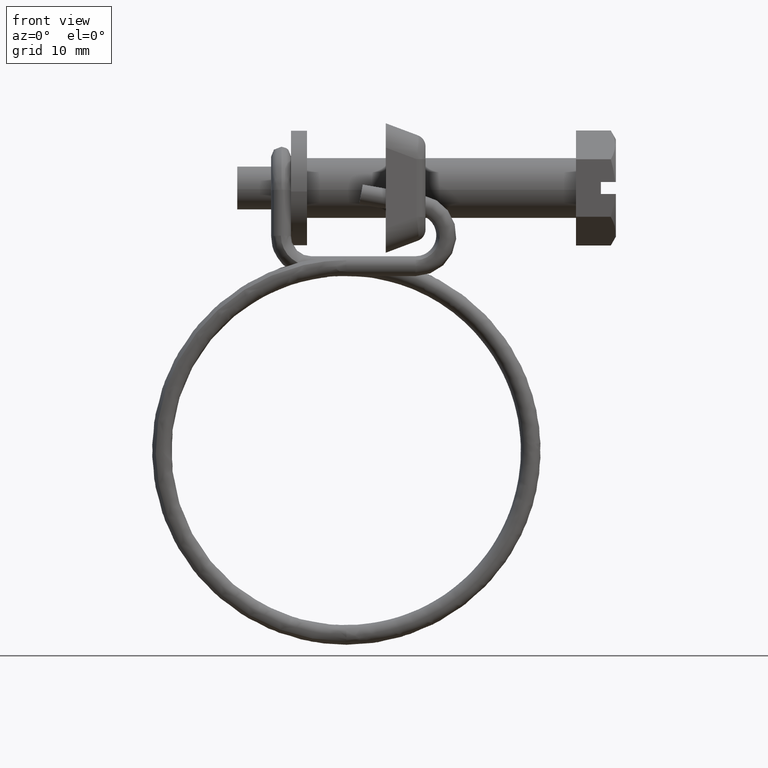
[diagram: clean part render]
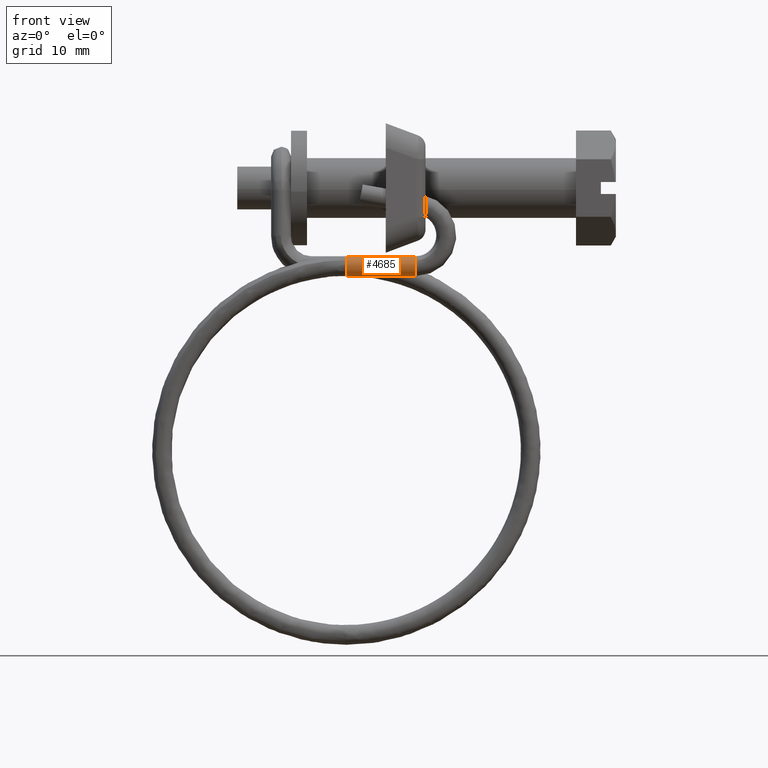
[diagram: same view with one face highlighted and labeled with its STEP entity id]
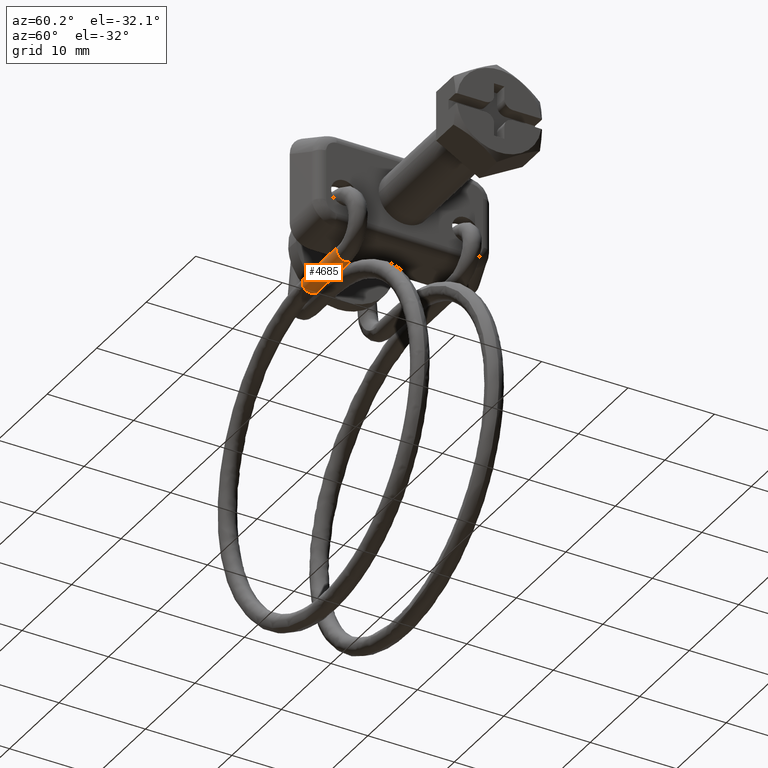
[diagram: same view with one face highlighted and labeled with its STEP entity id]
A machine part, front view. The second image highlights one B-rep face of the part: STEP entity #4685.
A second angle (auxiliary view) of the same face is appended — the face is thin or edge-on in the first view.
In plain terms, the highlighted face is a freeform B-spline surface patch.
Its self-contained STEP definition (entity closure, byte-faithful):
#4555=CARTESIAN_POINT('',(-23.223495853715775,-6.061864660282851,-6.881276122855943));
#4556=CARTESIAN_POINT('',(-23.223495853715775,-6.207387581596286,-6.844000665696479));
#4557=CARTESIAN_POINT('',(-23.223495853715779,-6.357439567843020,-6.851126797708463));
#4558=CARTESIAN_POINT('',(-23.223495853715779,-7.356313770134380,-6.898564419874883));
#4559=CARTESIAN_POINT('',(-23.223495853715779,-7.308876147967958,-7.897438622166241));
#4560=CARTESIAN_POINT('',(-23.223495853715779,-7.261438525801538,-8.896312824457597));
#4561=CARTESIAN_POINT('',(-23.223495853715779,-6.262564323510180,-8.848875202291177));
#4562=CARTESIAN_POINT('',(-23.223495853715779,-5.263690121218823,-8.801437580124757));
#4563=CARTESIAN_POINT('',(-23.223495853715779,-5.311127743385242,-7.802563377833400));
#4564=CARTESIAN_POINT('',(-15.932332601255759,-6.061864660282851,-6.881276122855943));
#4565=CARTESIAN_POINT('',(-15.932332601255760,-6.207387581596286,-6.844000665696479));
#4566=CARTESIAN_POINT('',(-15.932332601255760,-6.357439567843020,-6.851126797708463));
#4567=CARTESIAN_POINT('',(-15.932332601255768,-7.356313770134380,-6.898564419874883));
#4568=CARTESIAN_POINT('',(-15.932332601255760,-7.308876147967958,-7.897438622166241));
#4569=CARTESIAN_POINT('',(-15.932332601255768,-7.261438525801538,-8.896312824457597));
#4570=CARTESIAN_POINT('',(-15.932332601255760,-6.262564323510180,-8.848875202291177));
#4571=CARTESIAN_POINT('',(-15.932332601255768,-5.263690121218823,-8.801437580124757));
#4572=CARTESIAN_POINT('',(-15.932332601255760,-5.311127743385242,-7.802563377833400));
#4580=(BOUNDED_SURFACE()B_SPLINE_SURFACE(2,1,((#4555,#4564),(#4556,#4565),(#4557,#4566),(#4558,#4567),(#4559,#4568),(#4560,#4569),(#4561,#4570),(#4562,#4571),(#4563,#4572)),.UNSPECIFIED.,.F.,.F.,.U.)B_SPLINE_SURFACE_WITH_KNOTS((3,2,2,2,3),(2,2),(1.256637061435917,1.570796326794897,3.141592653589793,4.712388980384690,6.283185307179586),(0.0,7.291163252460018),.UNSPECIFIED.)GEOMETRIC_REPRESENTATION_ITEM()RATIONAL_B_SPLINE_SURFACE(((0.906274169979695,0.906274169979695),(0.941421356237309,0.941421356237309),(1.0,1.0),(0.707106781186548,0.707106781186548),(1.0,1.0),(0.707106781186548,0.707106781186548),(1.0,1.0),(0.707106781186548,0.707106781186548),(1.0,1.0)))REPRESENTATION_ITEM('')SURFACE());
#4581=CARTESIAN_POINT('',(-16.110165851315781,-6.061984946200901,-6.881744047677394));
#4582=VERTEX_POINT('',#4581);
#4583=CARTESIAN_POINT('',(-16.110165851315760,-6.418330858357346,-6.855885894833367));
#4584=VERTEX_POINT('',#4583);
#4585=CARTESIAN_POINT('',(-16.110165851315781,-6.061984946200901,-6.881744047677394));
#4586=CARTESIAN_POINT('',(-16.110165851315770,-6.178002519084687,-6.852084165349648));
#4587=CARTESIAN_POINT('',(-16.110165851315770,-6.299221444937082,-6.842756537710409));
#4588=CARTESIAN_POINT('',(-16.110165851315760,-6.418330858357346,-6.855885894833367));
#4589=B_SPLINE_CURVE_WITH_KNOTS('',3,(#4585,#4586,#4587,#4588),.UNSPECIFIED.,.F.,.U.,(4,4),(0.942811837356443,1.0),.UNSPECIFIED.);
#4590=EDGE_CURVE('',#4582,#4584,#4589,.T.);
#4591=ORIENTED_EDGE('',*,*,#4590,.F.);
#4592=CARTESIAN_POINT('',(-23.049999999998700,-6.061984946165349,-6.881744047536308));
#4593=VERTEX_POINT('',#4592);
#4594=CARTESIAN_POINT('',(-23.049999999998700,-6.061984946165349,-6.881744047536308));
#4595=CARTESIAN_POINT('',(-16.110165851315781,-6.061984946200901,-6.881744047677394));
#4596=QUASI_UNIFORM_CURVE('',1,(#4594,#4595),.UNSPECIFIED.,.F.,.U.);
#4597=EDGE_CURVE('',#4593,#4582,#4596,.T.);
#4598=ORIENTED_EDGE('',*,*,#4597,.F.);
#4599=CARTESIAN_POINT('',(-23.049999999998700,-6.418330898344230,-6.855885896999195));
#4600=VERTEX_POINT('',#4599);
#4601=CARTESIAN_POINT('',(-23.049999999998700,-6.061984946165349,-6.881744047536308));
#4602=CARTESIAN_POINT('',(-23.049999999998700,-6.178002532036932,-6.852084161647801));
#4603=CARTESIAN_POINT('',(-23.049999999998700,-6.299221472066138,-6.842756534705753));
#4604=CARTESIAN_POINT('',(-23.049999999998700,-6.418330898344230,-6.855885896999195));
#4605=B_SPLINE_CURVE_WITH_KNOTS('',3,(#4601,#4602,#4603,#4604),.UNSPECIFIED.,.F.,.U.,(4,4),(0.942811830977924,1.0),.UNSPECIFIED.);
#4606=EDGE_CURVE('',#4593,#4600,#4605,.T.);
#4607=ORIENTED_EDGE('',*,*,#4606,.T.);
#4608=CARTESIAN_POINT('',(-23.049999999998700,-7.108815314261218,-7.248458882189789));
#4609=VERTEX_POINT('',#4608);
#4610=CARTESIAN_POINT('',(-23.049999999998700,-6.418330898344230,-6.855885896999195));
#4611=CARTESIAN_POINT('',(-23.049999999998700,-6.678589623711680,-6.884246350488500));
#4612=CARTESIAN_POINT('',(-23.049999999998700,-6.925570772727950,-7.019571027868130));
#4613=CARTESIAN_POINT('',(-23.049999999998700,-7.096106701423592,-7.231819007583885));
#4614=CARTESIAN_POINT('',(-23.049999999998700,-7.102529750860319,-7.240088403559629));
#4615=CARTESIAN_POINT('',(-23.049999999998700,-7.108815314261218,-7.248458882189789));
#4616=B_SPLINE_CURVE_WITH_KNOTS('',3,(#4610,#4611,#4612,#4613,#4614,#4615),.UNSPECIFIED.,.F.,.U.,(4,2,4),(0.0,0.125000000000000,0.130000011039324),.UNSPECIFIED.);
#4617=EDGE_CURVE('',#4600,#4609,#4616,.T.);
#4618=ORIENTED_EDGE('',*,*,#4617,.T.);
#4619=CARTESIAN_POINT('',(-23.049999999998700,-6.201672993008976,-8.844116103000440));
#4620=VERTEX_POINT('',#4619);
#4621=CARTESIAN_POINT('',(-23.049999999998700,-7.108815314261218,-7.248458882189789));
#4622=CARTESIAN_POINT('',(-23.049999999998700,-7.259669009353940,-7.449350600324918));
#4623=CARTESIAN_POINT('',(-23.049999999998700,-7.331343081522316,-7.708481599299342));
#4624=CARTESIAN_POINT('',(-23.049999999998700,-7.275756595187921,-8.218588678034900));
#4625=CARTESIAN_POINT('',(-23.049999999998700,-7.140431917808300,-8.465569827051159));
#4626=CARTESIAN_POINT('',(-23.049999999998700,-6.732262760708080,-8.793523508232111));
#4627=CARTESIAN_POINT('',(-23.049999999998700,-6.461931718376430,-8.872476556489749));
#4628=CARTESIAN_POINT('',(-23.049999999998700,-6.201672993008976,-8.844116103000440));
#4629=B_SPLINE_CURVE_WITH_KNOTS('',3,(#4621,#4622,#4623,#4624,#4625,#4626,#4627,#4628),.UNSPECIFIED.,.F.,.U.,(4,2,2,4),(0.130000011039324,0.250000000000000,0.375000000000000,0.500000000000000),.UNSPECIFIED.);
#4630=EDGE_CURVE('',#4609,#4620,#4629,.T.);
#4631=ORIENTED_EDGE('',*,*,#4630,.T.);
#4632=CARTESIAN_POINT('',(-23.049999999998700,-5.311166654133594,-7.802564557885741));
#4633=VERTEX_POINT('',#4632);
#4634=CARTESIAN_POINT('',(-23.049999999998700,-6.201672993008976,-8.844116103000440));
#4635=CARTESIAN_POINT('',(-23.049999999998700,-5.941408856807967,-8.815755405294498));
#4636=CARTESIAN_POINT('',(-23.049999999998700,-5.694420234736023,-8.680430390620360));
#4637=CARTESIAN_POINT('',(-23.049999999998700,-5.379210289133487,-8.288139129554434));
#4638=CARTESIAN_POINT('',(-23.049999999998700,-5.300292869483000,-8.043593749295711));
#4639=CARTESIAN_POINT('',(-23.049999999998700,-5.311166654133594,-7.802564557885741));
#4640=B_SPLINE_CURVE_WITH_KNOTS('',3,(#4634,#4635,#4636,#4637,#4638,#4639),.UNSPECIFIED.,.F.,.U.,(4,2,4),(0.500000000000000,0.625000000000000,0.740274534479289),.UNSPECIFIED.);
#4641=EDGE_CURVE('',#4620,#4633,#4640,.T.);
#4642=ORIENTED_EDGE('',*,*,#4641,.T.);
#4643=CARTESIAN_POINT('',(-16.110165851554608,-5.311166654086835,-7.802564557878826));
#4644=VERTEX_POINT('',#4643);
#4645=CARTESIAN_POINT('',(-23.049999999998700,-5.311166654133594,-7.802564557885741));
#4646=CARTESIAN_POINT('',(-16.110165851554608,-5.311166654086835,-7.802564557878826));
#4647=QUASI_UNIFORM_CURVE('',1,(#4645,#4646),.UNSPECIFIED.,.F.,.U.);
#4648=EDGE_CURVE('',#4633,#4644,#4647,.T.);
#4649=ORIENTED_EDGE('',*,*,#4648,.T.);
#4650=CARTESIAN_POINT('',(-16.110165851315781,-6.201673032759847,-8.844116107332102));
#4651=VERTEX_POINT('',#4650);
#4652=CARTESIAN_POINT('',(-16.110165851315781,-6.201673032759847,-8.844116107332102));
#4653=CARTESIAN_POINT('',(-16.110165851349009,-5.941408895431570,-8.815755420033215));
#4654=CARTESIAN_POINT('',(-16.110165851394910,-5.694420267957749,-8.680430415235319));
#4655=CARTESIAN_POINT('',(-16.110165851482581,-5.379210298332059,-8.288139156376147));
#4656=CARTESIAN_POINT('',(-16.110165851523909,-5.300292868546233,-8.043593762650719));
#4657=CARTESIAN_POINT('',(-16.110165851554608,-5.311166654086835,-7.802564557878826));
#4658=B_SPLINE_CURVE_WITH_KNOTS('',3,(#4652,#4653,#4654,#4655,#4656,#4657),.UNSPECIFIED.,.F.,.U.,(4,2,4),(0.500000000000000,0.625000000000000,0.740274540847649),.UNSPECIFIED.);
#4659=EDGE_CURVE('',#4651,#4644,#4658,.T.);
#4660=ORIENTED_EDGE('',*,*,#4659,.F.);
#4661=CARTESIAN_POINT('',(-16.110165851315760,-7.108815286981647,-7.248458872689191));
#4662=VERTEX_POINT('',#4661);
#4663=CARTESIAN_POINT('',(-16.110165851315760,-7.108815286981647,-7.248458872689191));
#4664=CARTESIAN_POINT('',(-16.110165851315781,-7.259668996411343,-7.449350573479191));
#4665=CARTESIAN_POINT('',(-16.110165851315781,-7.331343075278910,-7.708481563824408));
#4666=CARTESIAN_POINT('',(-16.110165851315781,-7.275756609926328,-8.218588639418055));
#4667=CARTESIAN_POINT('',(-16.110165851315770,-7.140431942422541,-8.465569793845432));
#4668=CARTESIAN_POINT('',(-16.110165851315781,-6.732262798435946,-8.793523491347514));
#4669=CARTESIAN_POINT('',(-16.110165851315781,-6.461931759261324,-8.872476550414655));
#4670=CARTESIAN_POINT('',(-16.110165851315781,-6.201673032759847,-8.844116107332102));
#4671=B_SPLINE_CURVE_WITH_KNOTS('',3,(#4663,#4664,#4665,#4666,#4667,#4668,#4669,#4670),.UNSPECIFIED.,.F.,.U.,(4,2,2,4),(0.130000013615897,0.250000000000000,0.375000000000000,0.500000000000000),.UNSPECIFIED.);
#4672=EDGE_CURVE('',#4662,#4651,#4671,.T.);
#4673=ORIENTED_EDGE('',*,*,#4672,.F.);
#4674=CARTESIAN_POINT('',(-16.110165851315760,-6.418330858357346,-6.855885894833367));
#4675=CARTESIAN_POINT('',(-16.110165851315781,-6.678589585094833,-6.884246335750093));
#4676=CARTESIAN_POINT('',(-16.110165851315781,-6.925570739522213,-7.019571003253878));
#4677=CARTESIAN_POINT('',(-16.110165851315781,-7.096106680084830,-7.231818980357266));
#4678=CARTESIAN_POINT('',(-16.110165851315781,-7.102529733092000,-7.240088380392129));
#4679=CARTESIAN_POINT('',(-16.110165851315760,-7.108815286981647,-7.248458872689191));
#4680=B_SPLINE_CURVE_WITH_KNOTS('',3,(#4674,#4675,#4676,#4677,#4678,#4679),.UNSPECIFIED.,.F.,.U.,(4,2,4),(0.0,0.125000000000000,0.130000013615897),.UNSPECIFIED.);
#4681=EDGE_CURVE('',#4584,#4662,#4680,.T.);
#4682=ORIENTED_EDGE('',*,*,#4681,.F.);
#4683=EDGE_LOOP('',(#4591,#4598,#4607,#4618,#4631,#4642,#4649,#4660,#4673,#4682));
#4684=FACE_OUTER_BOUND('',#4683,.T.);
#4685=ADVANCED_FACE('',(#4684),#4580,.T.);